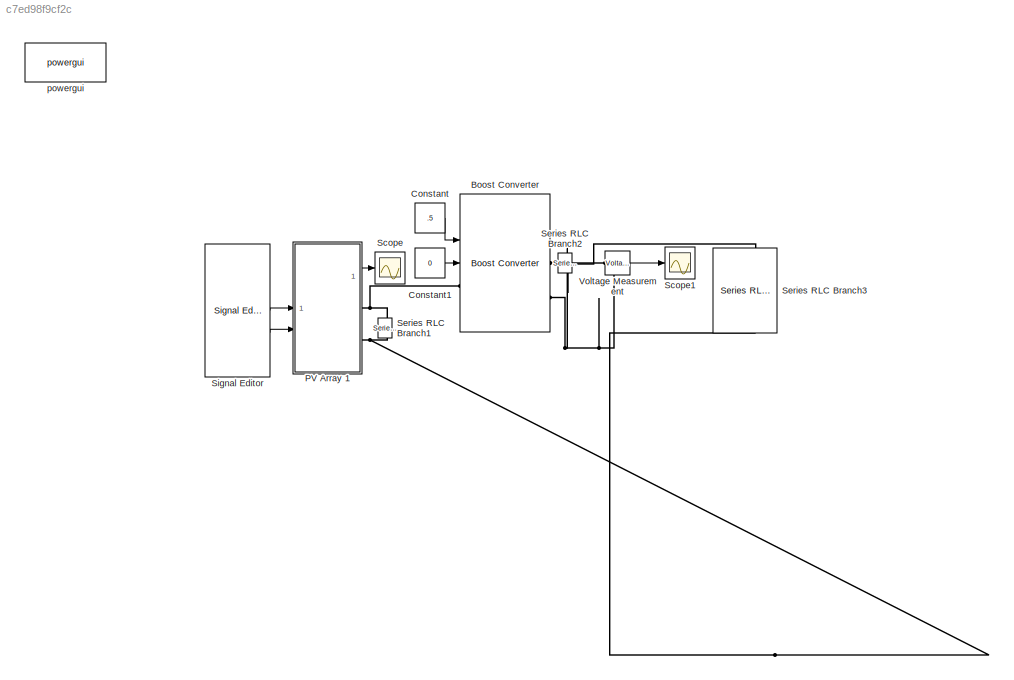
MODEL slx_c7ed98f9cf2c
KIND model
CONFIG AbsTol = auto
CONFIG EnableMultiTasking = off
CONFIG FixedStep = auto
CONFIG MaxStep = auto
CONFIG MinStep = auto
CONFIG RelTol = 1e-3
CONFIG SampleTimeConstraint = Unconstrained
CONFIG SolverName = VariableStepAuto
CONFIG StartTime = 0.0
CONFIG StopTime = 72
BLOCK [Reference] Boost Converter  REF=spsBoostConverterLib/Boost Converter
  LibrarySourceBlock = sps_lib/Power Electronics/Boost Converter
  SourceBlock = spsBoostConverterLib/Boost Converter
  SourceType = Boost Converter
BLOCK [Constant] Constant
  Value = .5
BLOCK [Constant] Constant1
  Value = 0
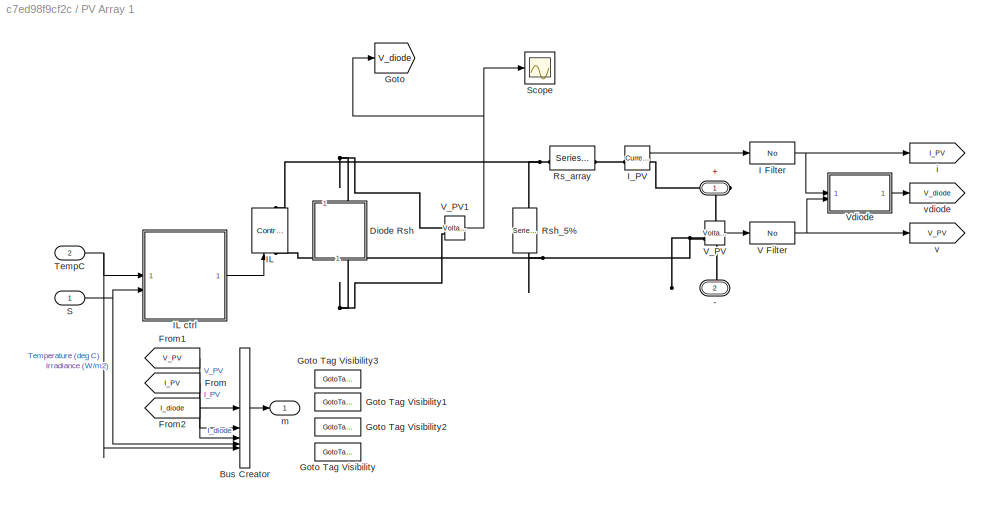
BLOCK [SubSystem] PV Array 1
  AncestorBlock = spsPVArrayLib/PV Array
  CloseFcn = sps_rtmsupport('CloseFcn',gcbh);
  CopyFcn = sps_rtmsupport('CopyFcn',gcbh);
  DeleteFcn = sps_rtmsupport('DeleteFcn',gcbh);
  DialogController = POWERSYS.PowerSysDialog
  LoadFcn = sps_rtmsupport('LoadFcn',gcbh);
  ModelCloseFcn = sps_rtmsupport('ModelCloseFcn',gcbh);
  NameChangeFcn = sps_rtmsupport('NameChangeFcn',gcbh);
  OpenFcn = %assignin('base','PVMaskOpening',1);\n%open_system(gcb,'mask')\n%assignin('base','PVMaskOpening',0);\nsps_rtmsupport('OpenFcn',gcbh, [3 6 7 23]);
  PostSaveFcn = sps_rtmsupport('PostSaveFcn',gcbh);
  PreCopyFcn = sps_rtmsupport('PreCopyFcn',gcbh);
  PreDeleteFcn = sps_rtmsupport('PreDeleteFcn',gcbh);
  PreSaveFcn = sps_rtmsupport('PreSaveFcn',gcbh);
  StartFcn = sps_rtmsupport('StartFcn',gcbh);
  StopFcn = sps_rtmsupport('StopFcn',gcbh);
  UndoDeleteFcn = sps_rtmsupport('UndoDeleteFcn',gcbh);
BLOCK [PMIOPort] PV Array 1/+
  Side = Right
BLOCK [PMIOPort] PV Array 1/-
  Port = 2
  Side = Right
BLOCK [BusCreator] PV Array 1/Bus Creator
  DisplayOption = bar
  InheritFromInputs = on
  Inputs = 5
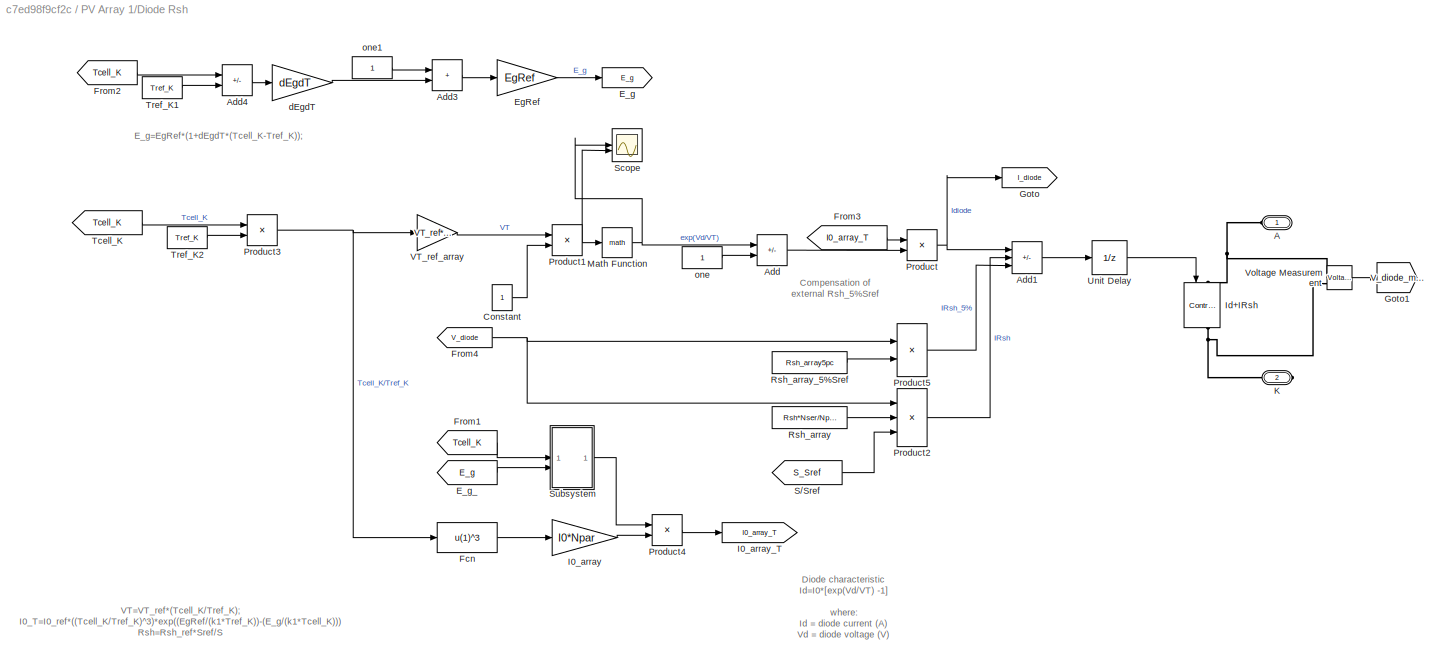
BLOCK [SubSystem] PV Array 1/Diode Rsh
  AncestorBlock = spsPVarrayModel/Discrete Diode Rsh BAL
  NameLocation = right
BLOCK [PMIOPort] PV Array 1/Diode Rsh/A
  Side = Left
BLOCK [Sum] PV Array 1/Diode Rsh/Add
  IconShape = rectangular
  Inputs = +-
BLOCK [Sum] PV Array 1/Diode Rsh/Add1
  IconShape = rectangular
  Inputs = ++-
BLOCK [Sum] PV Array 1/Diode Rsh/Add3
  IconShape = rectangular
BLOCK [Sum] PV Array 1/Diode Rsh/Add4
  IconShape = rectangular
  Inputs = +-
BLOCK [Constant] PV Array 1/Diode Rsh/Constant
BLOCK [Goto] PV Array 1/Diode Rsh/E_g
  GotoTag = E_g
BLOCK [From] PV Array 1/Diode Rsh/E_g_
  GotoTag = E_g
BLOCK [Gain] PV Array 1/Diode Rsh/EgRef
  Gain = EgRef
BLOCK [Fcn] PV Array 1/Diode Rsh/Fcn
  Expr = u(1)^3
BLOCK [From] PV Array 1/Diode Rsh/From1
  GotoTag = Tcell_K
  TagVisibility = scoped
BLOCK [From] PV Array 1/Diode Rsh/From2
  GotoTag = Tcell_K
  TagVisibility = scoped
BLOCK [From] PV Array 1/Diode Rsh/From3
  GotoTag = I0_array_T
BLOCK [From] PV Array 1/Diode Rsh/From4
  GotoTag = V_diode
  TagVisibility = scoped
BLOCK [Goto] PV Array 1/Diode Rsh/Goto
  GotoTag = I_diode
  TagVisibility = scoped
BLOCK [Goto] PV Array 1/Diode Rsh/Goto1
  GotoTag = V_diode_manual
  TagVisibility = global
BLOCK [Gain] PV Array 1/Diode Rsh/I0_array
  Gain = I0*Npar
BLOCK [Goto] PV Array 1/Diode Rsh/I0_array_T
  GotoTag = I0_array_T
BLOCK [Reference] PV Array 1/Diode Rsh/Id+IRsh  REF=spsControlledCurrentSourceLib/Controlled Current Source
  NameLocation = right
  SourceBlock = spsControlledCurrentSourceLib/Controlled Current Source
  SourceType = Controlled Current Source
BLOCK [PMIOPort] PV Array 1/Diode Rsh/K
  Port = 2
  Side = Right
BLOCK [Math] PV Array 1/Diode Rsh/Math Function
  SignedPower = on
BLOCK [Product] PV Array 1/Diode Rsh/Product
  RndMeth = Zero
BLOCK [Product] PV Array 1/Diode Rsh/Product1
  Inputs = /*
  RndMeth = Zero
BLOCK [Product] PV Array 1/Diode Rsh/Product2
  Inputs = */*
  RndMeth = Zero
BLOCK [Product] PV Array 1/Diode Rsh/Product3
  Inputs = */
  RndMeth = Zero
BLOCK [Product] PV Array 1/Diode Rsh/Product4
  Inputs = **
  RndMeth = Zero
BLOCK [Product] PV Array 1/Diode Rsh/Product5
  Inputs = */
  RndMeth = Zero
BLOCK [Constant] PV Array 1/Diode Rsh/Rsh_array
  Value = Rsh*Nser/Npar
BLOCK [Constant] PV Array 1/Diode Rsh/Rsh_array_5%Sref
  Value = Rsh_array5pc
BLOCK [From] PV Array 1/Diode Rsh/S//Sref
  GotoTag = S_Sref
  TagVisibility = scoped
BLOCK [Scope] PV Array 1/Diode Rsh/Scope
  Floating = off
  NumInputPorts = 2
  ScopeSpecificationString = Simulink.scopes.TimeScopeBlockCfg('CurrentConfiguration', extmgr.ConfigurationSet(extmgr.Configuration('Core','General UI',true),extmgr.Configuration('Core','Source UI',true),extmgr.Configuration('Sources','WiredSimulink',true,'DataLoggingVariableName','ScopeData4'),extmgr.Configuration('Visuals','Time Domain',true,'SerializedDisplays',{struct('MinYLimReal','0.01835','MaxYLimReal','1.29558','YLabe...<+1450ch>
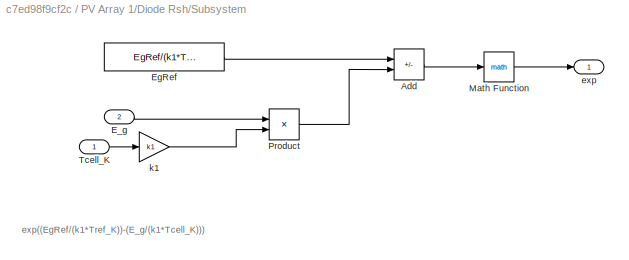
BLOCK [SubSystem] PV Array 1/Diode Rsh/Subsystem
BLOCK [Sum] PV Array 1/Diode Rsh/Subsystem/Add
  IconShape = rectangular
  Inputs = +-
BLOCK [Inport] PV Array 1/Diode Rsh/Subsystem/E_g
  Port = 2
BLOCK [Constant] PV Array 1/Diode Rsh/Subsystem/EgRef
  Value = EgRef/(k1*Tref_K)
BLOCK [Math] PV Array 1/Diode Rsh/Subsystem/Math Function
  SignedPower = on
BLOCK [Product] PV Array 1/Diode Rsh/Subsystem/Product
  Inputs = */
BLOCK [Inport] PV Array 1/Diode Rsh/Subsystem/Tcell_K
BLOCK [Outport] PV Array 1/Diode Rsh/Subsystem/exp
  VectorParamsAs1DForOutWhenUnconnected = off
BLOCK [Gain] PV Array 1/Diode Rsh/Subsystem/k1
  Gain = k1
BLOCK [From] PV Array 1/Diode Rsh/Tcell_K
  GotoTag = Tcell_K
  TagVisibility = scoped
BLOCK [Constant] PV Array 1/Diode Rsh/Tref_K1
  Value = Tref_K
BLOCK [Constant] PV Array 1/Diode Rsh/Tref_K2
  Value = Tref_K
BLOCK [UnitDelay] PV Array 1/Diode Rsh/Unit Delay
  HasFrameUpgradeWarning = on
  SampleTime = Tsf
BLOCK [Gain] PV Array 1/Diode Rsh/VT_ref_array
  Gain = VT_ref*Nser
BLOCK [Reference] PV Array 1/Diode Rsh/Voltage Measurement  REF=spsVoltageMeasurementLib/Voltage Measurement
  LibrarySourceBlock = sps_lib/Sensors and Measurements/Voltage Measurement
  SourceBlock = spsVoltageMeasurementLib/Voltage Measurement
  SourceType = Voltage Measurement
  UserDataPersistent = on
BLOCK [Gain] PV Array 1/Diode Rsh/dEgdT
  Gain = dEgdT
BLOCK [Constant] PV Array 1/Diode Rsh/one
BLOCK [Constant] PV Array 1/Diode Rsh/one1
BLOCK [From] PV Array 1/From
  GotoTag = I_PV
BLOCK [From] PV Array 1/From1
  GotoTag = V_PV
BLOCK [From] PV Array 1/From2
  GotoTag = I_diode
  TagVisibility = scoped
BLOCK [Goto] PV Array 1/Goto
  GotoTag = V_diode
  TagVisibility = global
BLOCK [GotoTagVisibility] PV Array 1/Goto Tag Visibility
  GotoTag = S_Sref
BLOCK [GotoTagVisibility] PV Array 1/Goto Tag Visibility1
  GotoTag = I_diode
BLOCK [GotoTagVisibility] PV Array 1/Goto Tag Visibility2
  GotoTag = Tcell_K
BLOCK [GotoTagVisibility] PV Array 1/Goto Tag Visibility3
  GotoTag = V_diode
BLOCK [Reference] PV Array 1/I Filter  REF=spsPVarrayModel/No
  NameLocation = top
  SourceBlock = spsPVarrayModel/No
  SourceType = SubSystem
BLOCK [Reference] PV Array 1/IL  REF=spsControlledCurrentSourceLib/Controlled Current Source
  NameLocation = left
  SourceBlock = spsControlledCurrentSourceLib/Controlled Current Source
  SourceType = Controlled Current Source
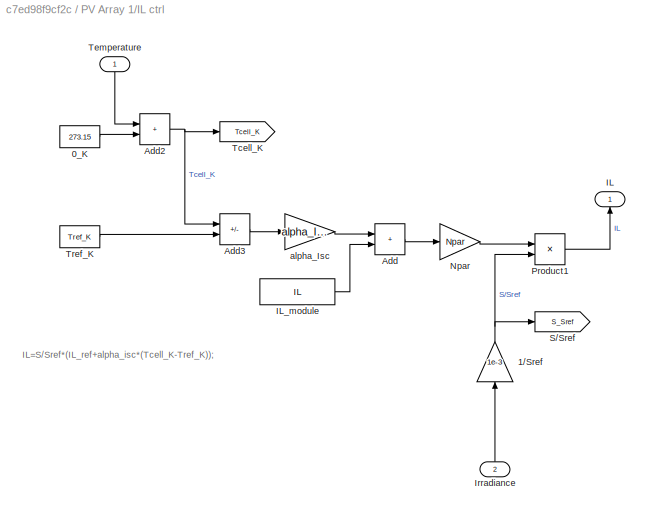
BLOCK [SubSystem] PV Array 1/IL ctrl
BLOCK [Constant] PV Array 1/IL ctrl/0_K
  Value = 273.15
BLOCK [Gain] PV Array 1/IL ctrl/1//Sref
  Gain = 1e-3
  NameLocation = right
BLOCK [Sum] PV Array 1/IL ctrl/Add
  IconShape = rectangular
BLOCK [Sum] PV Array 1/IL ctrl/Add2
  IconShape = rectangular
BLOCK [Sum] PV Array 1/IL ctrl/Add3
  IconShape = rectangular
  Inputs = +-
BLOCK [Outport] PV Array 1/IL ctrl/IL
  NameLocation = right
  VectorParamsAs1DForOutWhenUnconnected = off
BLOCK [Constant] PV Array 1/IL ctrl/IL_module
  Value = IL
BLOCK [Inport] PV Array 1/IL ctrl/Irradiance
  NameLocation = right
  Port = 2
BLOCK [Gain] PV Array 1/IL ctrl/Npar
  Gain = Npar
BLOCK [Product] PV Array 1/IL ctrl/Product1
  Inputs = **
  RndMeth = Zero
BLOCK [Goto] PV Array 1/IL ctrl/S//Sref
  GotoTag = S_Sref
  TagVisibility = scoped
BLOCK [Goto] PV Array 1/IL ctrl/Tcell_K
  GotoTag = Tcell_K
  TagVisibility = scoped
BLOCK [Inport] PV Array 1/IL ctrl/Temperature
  NameLocation = right
BLOCK [Constant] PV Array 1/IL ctrl/Tref_K
  Value = Tref_K
BLOCK [Gain] PV Array 1/IL ctrl/alpha_Isc
  Gain = alpha_Isc
BLOCK [Reference] PV Array 1/I_PV  REF=spsCurrentMeasurementLib/Current Measurement
  SourceBlock = spsCurrentMeasurementLib/Current Measurement
  SourceType = Current Measurement
BLOCK [Reference] PV Array 1/Rs_array  REF=spsSeriesRLCBranchLib/Series RLC Branch
  SourceBlock = spsSeriesRLCBranchLib/Series RLC Branch
  SourceType = Series RLC Branch
BLOCK [Reference] PV Array 1/Rsh_5%  REF=spsSeriesRLCBranchLib/Series RLC Branch
  NameLocation = right
  SourceBlock = spsSeriesRLCBranchLib/Series RLC Branch
  SourceType = Series RLC Branch
BLOCK [Inport] PV Array 1/S
BLOCK [Scope] PV Array 1/Scope
  Floating = off
  NumInputPorts = 1
  ScopeSpecificationString = Simulink.scopes.TimeScopeBlockCfg('CurrentConfiguration', extmgr.ConfigurationSet(extmgr.Configuration('Core','General UI',true),extmgr.Configuration('Core','Source UI',true),extmgr.Configuration('Sources','WiredSimulink',true,'DataLoggingVariableName','ScopeData3'),extmgr.Configuration('Visuals','Time Domain',true,'SerializedDisplays',{struct('MinYLimReal','-78.46687','MaxYLimReal','699.79648','Y...<+1403ch>
BLOCK [Inport] PV Array 1/TempC
  Port = 2
BLOCK [Reference] PV Array 1/V Filter  REF=spsPVarrayModel/No
  SourceBlock = spsPVarrayModel/No
  SourceType = SubSystem
BLOCK [Reference] PV Array 1/V_PV  REF=spsVoltageMeasurementLib/Voltage Measurement
  SourceBlock = spsVoltageMeasurementLib/Voltage Measurement
  SourceType = Voltage Measurement
BLOCK [Reference] PV Array 1/V_PV1  REF=spsVoltageMeasurementLib/Voltage Measurement
  SourceBlock = spsVoltageMeasurementLib/Voltage Measurement
  SourceType = Voltage Measurement
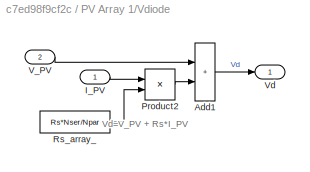
BLOCK [SubSystem] PV Array 1/Vdiode
BLOCK [Sum] PV Array 1/Vdiode/Add1
  IconShape = rectangular
BLOCK [Inport] PV Array 1/Vdiode/I_PV
BLOCK [Product] PV Array 1/Vdiode/Product2
  Inputs = **
  RndMeth = Zero
BLOCK [Constant] PV Array 1/Vdiode/Rs_array_
  Value = Rs*Nser/Npar
BLOCK [Inport] PV Array 1/Vdiode/V_PV
  Port = 2
BLOCK [Outport] PV Array 1/Vdiode/Vd
  VectorParamsAs1DForOutWhenUnconnected = off
BLOCK [Goto] PV Array 1/i
  GotoTag = I_PV
  NameLocation = top
BLOCK [Outport] PV Array 1/m
  VectorParamsAs1DForOutWhenUnconnected = off
BLOCK [Goto] PV Array 1/v
  GotoTag = V_PV
BLOCK [Goto] PV Array 1/vdiode
  GotoTag = V_diode
  TagVisibility = scoped
BLOCK [Scope] Scope
  Floating = off
  NumInputPorts = 1
  ScopeSpecificationString = Simulink.scopes.TimeScopeBlockCfg('CurrentConfiguration', extmgr.ConfigurationSet(extmgr.Configuration('Core','General UI',true),extmgr.Configuration('Core','Source UI',true),extmgr.Configuration('Sources','WiredSimulink',true,'DataLoggingVariableName','ScopeData1'),extmgr.Configuration('Visuals','Time Domain',true,'SerializedDisplays',{struct('MinYLimReal','-143.91179','MaxYLimReal','1127.10131',...<+1659ch>
BLOCK [Scope] Scope1
  Floating = off
  NumInputPorts = 1
  ScopeSpecificationString = Simulink.scopes.TimeScopeBlockCfg('CurrentConfiguration', extmgr.ConfigurationSet(extmgr.Configuration('Core','General UI',true),extmgr.Configuration('Core','Source UI',true),extmgr.Configuration('Sources','WiredSimulink',true,'DataLoggingVariableName','ScopeData2'),extmgr.Configuration('Visuals','Time Domain',true,'SerializedDisplays',{struct('MinYLimReal','-23.33712','MaxYLimReal','182.47011','Y...<+1437ch>
BLOCK [Reference] Series RLC Branch1  REF=spsSeriesRLCBranchLib/Series RLC Branch
  NameLocation = right
  SourceBlock = spsSeriesRLCBranchLib/Series RLC Branch
  SourceType = Series RLC Branch
BLOCK [Reference] Series RLC Branch2  REF=spsSeriesRLCBranchLib/Series RLC Branch
  NameLocation = right
  SourceBlock = spsSeriesRLCBranchLib/Series RLC Branch
  SourceType = Series RLC Branch
BLOCK [Reference] Series RLC Branch3  REF=spsSeriesRLCBranchLib/Series RLC Branch
  NameLocation = right
  SourceBlock = spsSeriesRLCBranchLib/Series RLC Branch
  SourceType = Series RLC Branch
BLOCK [Reference] Signal Editor  REF=SignalEditorBlockLib/Signal Editor
  LibrarySourceBlock = simulink/Sources/Signal Editor
  SourceBlock = SignalEditorBlockLib/Signal Editor
  SourceType = SignalEditor
  UserDataPersistent = on
BLOCK [Reference] Voltage Measurement  REF=spsVoltageMeasurementLib/Voltage Measurement
  LibrarySourceBlock = sps_lib/Sensors and Measurements/Voltage Measurement
  SourceBlock = spsVoltageMeasurementLib/Voltage Measurement
  SourceType = Voltage Measurement
  UserDataPersistent = on
BLOCK [Reference] powergui  REF=sps_lib/powergui
  LibrarySourceBlock = sps_lib/powergui
  Priority = 1
  SourceBlock = sps_lib/powergui
  SourceType = PSB option menu block
ANNOTATION PV Array 1/Diode Rsh: Compensation of external Rsh_5%Sref
ANNOTATION PV Array 1/Diode Rsh: Diode characteristic Id=I0*[exp(Vd/VT) -1] where: Id = diode current (A) Vd = diode voltage (V) I0 = diode saturation current (A) VT = temperature voltage = k*Tcell_K/q*nI*Ncell*Nser Tcell_K = cell temperature (K), k = Boltzman constant = 1.3806e-23 J.K^-1 q = electron charge = 1.6022e-19 C nI = diode ideality factor Ncell= number of series-connected cells per module Nser = number of series-connec...<+22ch>
ANNOTATION PV Array 1/Diode Rsh: E_g=EgRef*(1+dEgdT*(Tcell_K-Tref_K));
ANNOTATION PV Array 1/Diode Rsh: VT=VT_ref*(Tcell_K/Tref_K); I0_T=I0_ref*((Tcell_K/Tref_K)^3)*exp((EgRef/(k1*Tref_K))-(E_g/(k1*Tcell_K))) Rsh=Rsh_ref*Sref/S
ANNOTATION PV Array 1/Diode Rsh/Subsystem: exp((EgRef/(k1*Tref_K))-(E_g/(k1*Tcell_K)))
ANNOTATION PV Array 1/IL ctrl: IL=S/Sref*(IL_ref+alpha_isc*(Tcell_K-Tref_K));
ANNOTATION PV Array 1/Vdiode: Vd=V_PV + Rs*I_PV
LINE Constant1:1 -> Boost Converter:2
LINE Constant:1 -> Boost Converter:1
LINE PV Array 1:1 -> Scope:1
LINE Signal Editor:1 -> PV Array 1:1
LINE Signal Editor:2 -> PV Array 1:2
LINE Voltage Measurement:1 -> Scope1:1
PNET net1: Boost Converter:LConn1 -- PV Array 1:RConn1 -- Series RLC Branch1:RConn1
PNET net2: Boost Converter:RConn1 -- Series RLC Branch2:RConn1 -- Series RLC Branch3:RConn1 -- Voltage Measurement:LConn1
PNET net3: Boost Converter:RConn2 -- PV Array 1:RConn2 -- Series RLC Branch1:LConn1 -- Series RLC Branch2:LConn1 -- Series RLC Branch3:LConn1 -- Voltage Measurement:LConn2
note: PNET lines group multi-terminal physical nets as a canonical sorted terminal list (undirected conserving connections); 2-terminal nets keep the pairwise PLINE form
